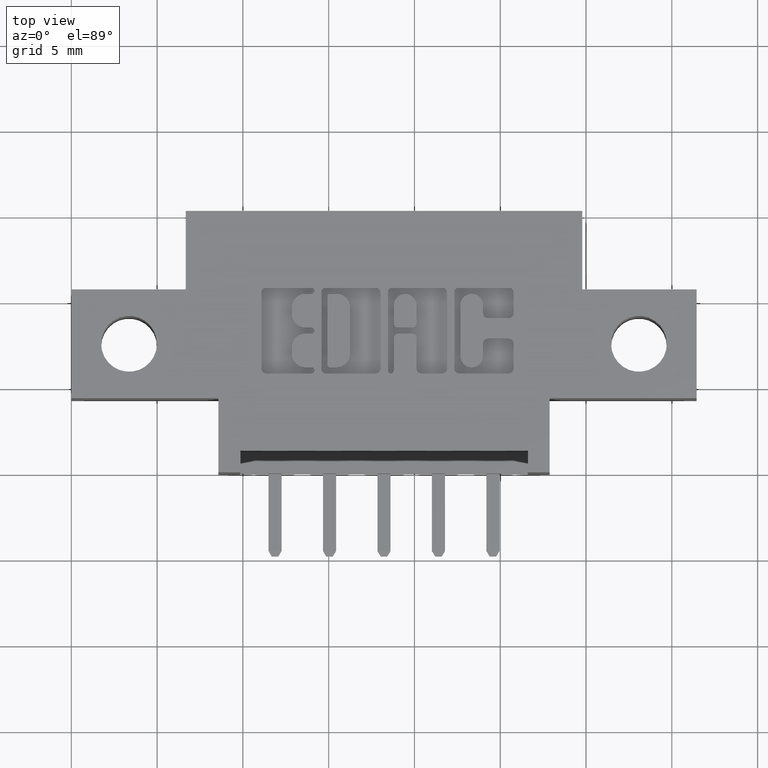
[diagram: clean part render]
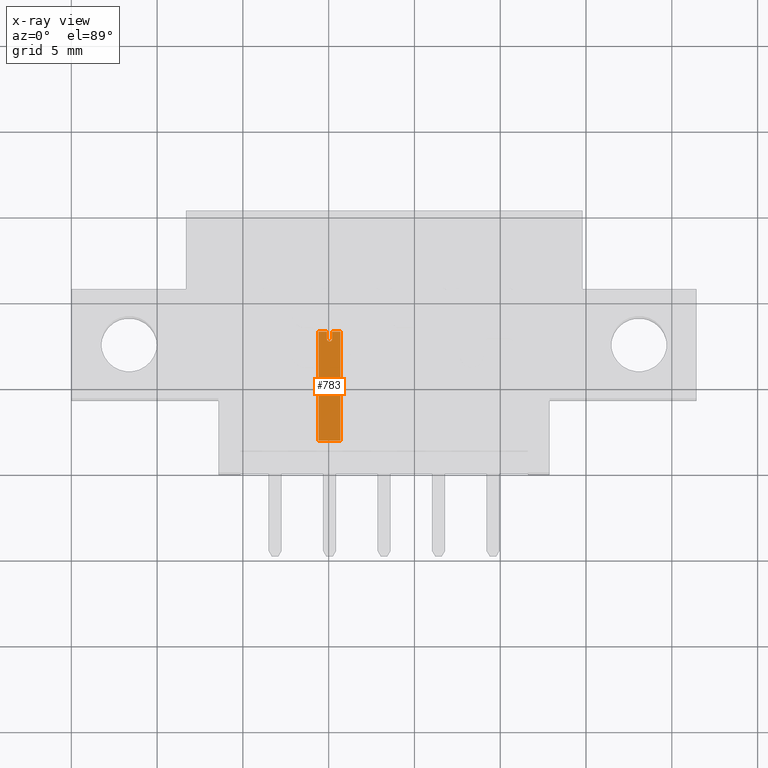
[diagram: x-ray — body ghosted, one internal face saturated and labeled with its STEP entity id]
A machine part, top view, then the same camera in x-ray: the body is ghosted and one INTERNAL B-rep face — a face not visible from any outside direction — is saturated and labeled: STEP entity #783.
In plain terms, the highlighted planar face has unit normal (-0, 0, -1).
Its self-contained STEP definition (entity closure, byte-faithful):
#44 = LINE ( 'NONE', #2618, #1065 ) ;
#123 = VERTEX_POINT ( 'NONE', #7557 ) ;
#162 = VECTOR ( 'NONE', #1888, 39.37007874015748143 ) ;
#783 = ADVANCED_FACE ( 'NONE', ( #6067 ), #1467, .T. ) ;
#925 = CARTESIAN_POINT ( 'NONE',  ( 0.3300000000013613710, 0.01250000000002930191, -0.02499999999934204159 ) ) ;
#926 = LINE ( 'NONE', #6168, #6668 ) ;
#1039 = DIRECTION ( 'NONE',  ( -6.623146816210952739E-14, 1.000000000000000000, 6.302514085672165487E-15 ) ) ;
#1065 = VECTOR ( 'NONE', #8323, 39.37007874015748143 ) ;
#1153 = ORIENTED_EDGE ( 'NONE', *, *, #3462, .T. ) ;
#1234 = CARTESIAN_POINT ( 'NONE',  ( 0.5802132034382633252, 0.01249999999996059645, 0.02500000000068153261 ) ) ;
#1467 = PLANE ( 'NONE',  #8055 ) ;
#1659 = VERTEX_POINT ( 'NONE', #3592 ) ;
#1702 = VERTEX_POINT ( 'NONE', #4103 ) ;
#1819 = EDGE_CURVE ( 'NONE', #1702, #123, #2546, .T. ) ;
#1888 = DIRECTION ( 'NONE',  ( 3.387193475878480569E-13, 6.302514085551773479E-15, 1.000000000000000000 ) ) ;
#2083 = CARTESIAN_POINT ( 'NONE',  ( 0.3300000000014257084, 0.01249999999998702670, 0.02500000000063133665 ) ) ;
#2175 = EDGE_CURVE ( 'NONE', #4161, #7507, #3337, .T. ) ;
#2203 = CARTESIAN_POINT ( 'NONE',  ( 0.3462132034369794220, 0.01249999999995533677, 3.435981814031227033E-13 ) ) ;
#2413 = ORIENTED_EDGE ( 'NONE', *, *, #1819, .F. ) ;
#2546 = LINE ( 'NONE', #2083, #5215 ) ;
#2581 = EDGE_CURVE ( 'NONE', #1659, #2695, #7221, .T. ) ;
#2618 = CARTESIAN_POINT ( 'NONE',  ( 0.3300000000013613710, 0.01250000000002930191, -0.02499999999934204159 ) ) ;
#2695 = VERTEX_POINT ( 'NONE', #4537 ) ;
#2705 = VECTOR ( 'NONE', #7491, 39.37007874015748143 ) ;
#2707 = CARTESIAN_POINT ( 'NONE',  ( 0.3522132034369795384, 0.01249999999995573402, 3.032712679769796788E-13 ) ) ;
#2721 = CARTESIAN_POINT ( 'NONE',  ( 0.3300000000013613710, 0.01250000000002930191, -0.02499999999934204159 ) ) ;
#2729 = VERTEX_POINT ( 'NONE', #5255 ) ;
#2793 = EDGE_CURVE ( 'NONE', #3926, #2729, #8216, .T. ) ;
#2906 = LINE ( 'NONE', #925, #2705 ) ;
#2907 = VERTEX_POINT ( 'NONE', #4868 ) ;
#3012 = EDGE_CURVE ( 'NONE', #1702, #1659, #44, .T. ) ;
#3292 = ORIENTED_EDGE ( 'NONE', *, *, #2793, .T. ) ;
#3337 = LINE ( 'NONE', #2721, #6050 ) ;
#3411 = ORIENTED_EDGE ( 'NONE', *, *, #6878, .T. ) ;
#3462 = EDGE_CURVE ( 'NONE', #2695, #3926, #6600, .T. ) ;
#3592 = CARTESIAN_POINT ( 'NONE',  ( 0.3300000000013568746, 0.01249999999992200926, 0.006000000000620830769 ) ) ;
#3926 = VERTEX_POINT ( 'NONE', #2707 ) ;
#3983 = CARTESIAN_POINT ( 'NONE',  ( 0.3300000000013568746, 0.01249999999992200926, 0.006000000000620830769 ) ) ;
#4019 = DIRECTION ( 'NONE',  ( -6.551482858450913042E-14, -1.000000000000000000, -6.302514085716790559E-15 ) ) ;
#4102 = ORIENTED_EDGE ( 'NONE', *, *, #2175, .T. ) ;
#4103 = CARTESIAN_POINT ( 'NONE',  ( 0.3300000000014257084, 0.01249999999998702670, 0.02500000000063133665 ) ) ;
#4118 = CARTESIAN_POINT ( 'NONE',  ( 0.3300000000013613710, 0.01250000000002930191, -0.02499999999934204159 ) ) ;
#4161 = VERTEX_POINT ( 'NONE', #5463 ) ;
#4394 = LINE ( 'NONE', #1234, #162 ) ;
#4537 = CARTESIAN_POINT ( 'NONE',  ( 0.3462132034369532207, 0.01249999999992521850, 0.006000000000339654645 ) ) ;
#4697 = AXIS2_PLACEMENT_3D ( 'NONE', #5596, #1039, #5515 ) ;
#4700 = DIRECTION ( 'NONE',  ( 1.000000000000000000, -6.545052484788948144E-14, -6.721410910644604255E-12 ) ) ;
#4755 = DIRECTION ( 'NONE',  ( -1.000000000000000000, 6.551482858450992559E-14, -3.385912922109801487E-13 ) ) ;
#4781 = EDGE_LOOP ( 'NONE', ( #7714, #6344, #1153, #3292, #3411, #6023, #4102, #6382, #2413 ) ) ;
#4868 = CARTESIAN_POINT ( 'NONE',  ( 0.3300000000014401969, 0.01249999999999733963, -0.005999999999379478262 ) ) ;
#5215 = VECTOR ( 'NONE', #7106, 39.37007874015748143 ) ;
#5255 = CARTESIAN_POINT ( 'NONE',  ( 0.3462132034370365430, 0.01249999999998859836, -0.005999999999660654386 ) ) ;
#5463 = CARTESIAN_POINT ( 'NONE',  ( 0.3300000000013613710, 0.01250000000002930191, -0.02499999999934204159 ) ) ;
#5515 = DIRECTION ( 'NONE',  ( 1.000000000000000000, -6.545052484788948144E-14, 2.151911012227652687E-11 ) ) ;
#5596 = CARTESIAN_POINT ( 'NONE',  ( 0.3462132034369794220, 0.01249999999995533677, 3.435981814031227033E-13 ) ) ;
#5768 = VECTOR ( 'NONE', #6586, 39.37007874015748143 ) ;
#5811 = EDGE_CURVE ( 'NONE', #2907, #4161, #2906, .T. ) ;
#6023 = ORIENTED_EDGE ( 'NONE', *, *, #5811, .T. ) ;
#6050 = VECTOR ( 'NONE', #8226, 39.37007874015748143 ) ;
#6067 = FACE_OUTER_BOUND ( 'NONE', #4781, .T. ) ;
#6071 = DIRECTION ( 'NONE',  ( -6.623146816210952739E-14, 1.000000000000000000, 6.302514085672165487E-15 ) ) ;
#6168 = CARTESIAN_POINT ( 'NONE',  ( 0.3300000000014401969, 0.01249999999999733963, -0.005999999999379478262 ) ) ;
#6344 = ORIENTED_EDGE ( 'NONE', *, *, #2581, .T. ) ;
#6382 = ORIENTED_EDGE ( 'NONE', *, *, #6612, .T. ) ;
#6482 = CARTESIAN_POINT ( 'NONE',  ( 0.5802132034382015968, 0.01249999999993321037, -0.02499999999924130273 ) ) ;
#6586 = DIRECTION ( 'NONE',  ( 1.000000000000000000, -6.551482858451126350E-14, 3.387193475856820594E-13 ) ) ;
#6600 = CIRCLE ( 'NONE', #4697, 0.006000000000029043733 ) ;
#6612 = EDGE_CURVE ( 'NONE', #7507, #123, #4394, .T. ) ;
#6615 = DIRECTION ( 'NONE',  ( 1.000000000000000000, -6.551482858451126350E-14, 3.387193475856820594E-13 ) ) ;
#6668 = VECTOR ( 'NONE', #4755, 39.37007874015748143 ) ;
#6735 = AXIS2_PLACEMENT_3D ( 'NONE', #2203, #6071, #4700 ) ;
#6878 = EDGE_CURVE ( 'NONE', #2729, #2907, #926, .T. ) ;
#7106 = DIRECTION ( 'NONE',  ( 1.000000000000000000, -6.551482858451126350E-14, 3.387193475856820594E-13 ) ) ;
#7221 = LINE ( 'NONE', #3983, #5768 ) ;
#7491 = DIRECTION ( 'NONE',  ( -3.387193475878480569E-13, -6.302514085551773479E-15, -1.000000000000000000 ) ) ;
#7507 = VERTEX_POINT ( 'NONE', #6482 ) ;
#7557 = CARTESIAN_POINT ( 'NONE',  ( 0.5802132034382633252, 0.01249999999996059645, 0.02500000000068153261 ) ) ;
#7714 = ORIENTED_EDGE ( 'NONE', *, *, #3012, .T. ) ;
#8055 = AXIS2_PLACEMENT_3D ( 'NONE', #4118, #4019, #6615 ) ;
#8216 = CIRCLE ( 'NONE', #6735, 0.006000000000029043733 ) ;
#8226 = DIRECTION ( 'NONE',  ( 1.000000000000000000, -6.551482858451126350E-14, 3.387193475856820594E-13 ) ) ;
#8323 = DIRECTION ( 'NONE',  ( -3.387193475878480569E-13, -6.302514085551773479E-15, -1.000000000000000000 ) ) ;